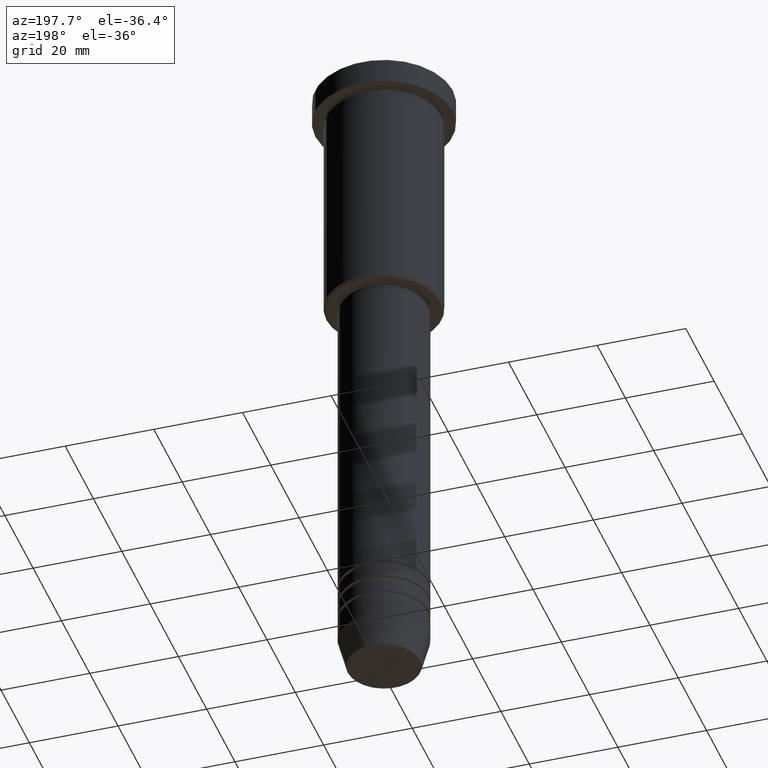
[diagram: clean part render]
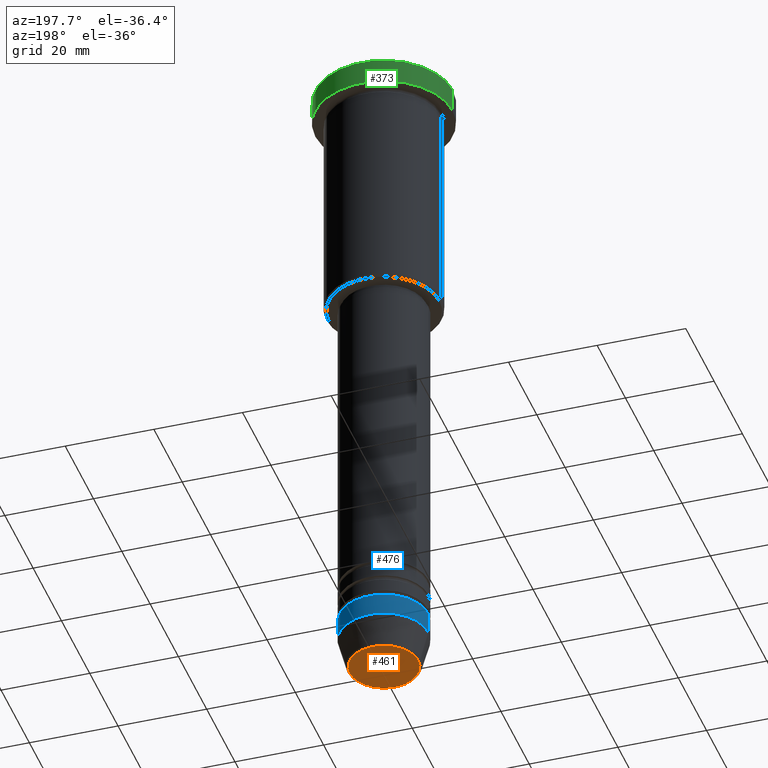
[diagram: same view with three faces highlighted in distinct colors, each labeled with its STEP entity id]
A machine part, auxiliary view with three faces highlighted in distinct colors.
Their STEP definitions:

[orange] entity #461 — the highlighted planar face has unit normal (0, -0, 1).
#24 = DIRECTION ( 'NONE',  ( 0.000000000000000000, -0.000000000000000000, 1.000000000000000000 ) ) ;
#44 = CARTESIAN_POINT ( 'NONE',  ( 0.000000000000000000, 0.000000000000000000, -151.0000000000000284 ) ) ;
#72 = CIRCLE ( 'NONE', #684, 7.740692158992660055 ) ;
#106 = CARTESIAN_POINT ( 'NONE',  ( 0.000000000000000000, 0.000000000000000000, -151.0000000000000284 ) ) ;
#230 = CARTESIAN_POINT ( 'NONE',  ( 7.740692158992660055, 0.000000000000000000, -151.0000000000000284 ) ) ;
#272 = EDGE_LOOP ( 'NONE', ( #290, #508 ) ) ;
#290 = ORIENTED_EDGE ( 'NONE', *, *, #417, .T. ) ;
#318 = DIRECTION ( 'NONE',  ( 0.000000000000000000, 0.000000000000000000, -1.000000000000000000 ) ) ;
#345 = DIRECTION ( 'NONE',  ( 0.000000000000000000, 0.000000000000000000, -1.000000000000000000 ) ) ;
#417 = EDGE_CURVE ( 'NONE', #691, #640, #1140, .T. ) ;
#461 = ADVANCED_FACE ( 'NONE', ( #878 ), #1088, .F. ) ;
#508 = ORIENTED_EDGE ( 'NONE', *, *, #1103, .T. ) ;
#629 = AXIS2_PLACEMENT_3D ( 'NONE', #44, #318, #692 ) ;
#640 = VERTEX_POINT ( 'NONE', #786 ) ;
#684 = AXIS2_PLACEMENT_3D ( 'NONE', #904, #345, #725 ) ;
#691 = VERTEX_POINT ( 'NONE', #230 ) ;
#692 = DIRECTION ( 'NONE',  ( 1.000000000000000000, 0.000000000000000000, 0.000000000000000000 ) ) ;
#722 = AXIS2_PLACEMENT_3D ( 'NONE', #106, #24, #1091 ) ;
#725 = DIRECTION ( 'NONE',  ( 1.000000000000000000, 0.000000000000000000, 0.000000000000000000 ) ) ;
#786 = CARTESIAN_POINT ( 'NONE',  ( -7.740692158992660055, 9.775343368540039135E-16, -151.0000000000000284 ) ) ;
#878 = FACE_OUTER_BOUND ( 'NONE', #272, .T. ) ;
#904 = CARTESIAN_POINT ( 'NONE',  ( 0.000000000000000000, 0.000000000000000000, -151.0000000000000284 ) ) ;
#1088 = PLANE ( 'NONE',  #722 ) ;
#1091 = DIRECTION ( 'NONE',  ( 1.000000000000000000, 0.000000000000000000, 0.000000000000000000 ) ) ;
#1103 = EDGE_CURVE ( 'NONE', #640, #691, #72, .T. ) ;
#1140 = CIRCLE ( 'NONE', #629, 7.740692158992660055 ) ;

[blue] entity #476 — the highlighted cylindrical surface (partial cylindrical patch) has radius 10 mm, axis along (-0, -0, 1).
#6 = FACE_OUTER_BOUND ( 'NONE', #727, .T. ) ;
#31 = VERTEX_POINT ( 'NONE', #364 ) ;
#33 = VECTOR ( 'NONE', #382, 1000.000000000000000 ) ;
#99 = ORIENTED_EDGE ( 'NONE', *, *, #1181, .F. ) ;
#134 = ORIENTED_EDGE ( 'NONE', *, *, #390, .F. ) ;
#249 = ORIENTED_EDGE ( 'NONE', *, *, #735, .T. ) ;
#261 = EDGE_CURVE ( 'NONE', #1014, #31, #1119, .T. ) ;
#265 = VECTOR ( 'NONE', #642, 1000.000000000000000 ) ;
#364 = CARTESIAN_POINT ( 'NONE',  ( -10.00000000000000000, 1.224646799147353256E-15, -139.0000000000000000 ) ) ;
#366 = DIRECTION ( 'NONE',  ( -0.000000000000000000, -0.000000000000000000, 1.000000000000000000 ) ) ;
#382 = DIRECTION ( 'NONE',  ( -0.000000000000000000, -0.000000000000000000, 1.000000000000000000 ) ) ;
#390 = EDGE_CURVE ( 'NONE', #881, #31, #1020, .T. ) ;
#445 = AXIS2_PLACEMENT_3D ( 'NONE', #840, #366, #749 ) ;
#454 = CARTESIAN_POINT ( 'NONE',  ( -10.00000000000000000, 1.224646799147353256E-15, 0.000000000000000000 ) ) ;
#463 = AXIS2_PLACEMENT_3D ( 'NONE', #958, #870, #1132 ) ;
#476 = ADVANCED_FACE ( 'NONE', ( #6 ), #559, .T. ) ;
#544 = AXIS2_PLACEMENT_3D ( 'NONE', #792, #1154, #1167 ) ;
#559 = CYLINDRICAL_SURFACE ( 'NONE', #445, 10.00000000000000000 ) ;
#562 = LINE ( 'NONE', #934, #265 ) ;
#611 = CIRCLE ( 'NONE', #544, 10.00000000000000000 ) ;
#626 = VERTEX_POINT ( 'NONE', #1145 ) ;
#637 = CARTESIAN_POINT ( 'NONE',  ( -10.00000000000000000, 1.224646799147353256E-15, -144.0000000000000284 ) ) ;
#642 = DIRECTION ( 'NONE',  ( -0.000000000000000000, -0.000000000000000000, 1.000000000000000000 ) ) ;
#727 = EDGE_LOOP ( 'NONE', ( #249, #763, #134, #99 ) ) ;
#735 = EDGE_CURVE ( 'NONE', #626, #1014, #611, .T. ) ;
#749 = DIRECTION ( 'NONE',  ( 1.000000000000000000, 0.000000000000000000, 0.000000000000000000 ) ) ;
#763 = ORIENTED_EDGE ( 'NONE', *, *, #261, .T. ) ;
#792 = CARTESIAN_POINT ( 'NONE',  ( 0.000000000000000000, 0.000000000000000000, -144.0000000000000284 ) ) ;
#840 = CARTESIAN_POINT ( 'NONE',  ( 0.000000000000000000, 0.000000000000000000, 0.000000000000000000 ) ) ;
#870 = DIRECTION ( 'NONE',  ( -0.000000000000000000, -0.000000000000000000, 1.000000000000000000 ) ) ;
#881 = VERTEX_POINT ( 'NONE', #959 ) ;
#934 = CARTESIAN_POINT ( 'NONE',  ( 10.00000000000000000, 0.000000000000000000, 0.000000000000000000 ) ) ;
#958 = CARTESIAN_POINT ( 'NONE',  ( 0.000000000000000000, 0.000000000000000000, -139.0000000000000000 ) ) ;
#959 = CARTESIAN_POINT ( 'NONE',  ( 10.00000000000000000, 0.000000000000000000, -139.0000000000000000 ) ) ;
#1014 = VERTEX_POINT ( 'NONE', #637 ) ;
#1020 = CIRCLE ( 'NONE', #463, 10.00000000000000000 ) ;
#1119 = LINE ( 'NONE', #454, #33 ) ;
#1132 = DIRECTION ( 'NONE',  ( 1.000000000000000000, 0.000000000000000000, 0.000000000000000000 ) ) ;
#1145 = CARTESIAN_POINT ( 'NONE',  ( 10.00000000000000000, 0.000000000000000000, -144.0000000000000284 ) ) ;
#1154 = DIRECTION ( 'NONE',  ( -0.000000000000000000, -0.000000000000000000, 1.000000000000000000 ) ) ;
#1167 = DIRECTION ( 'NONE',  ( 1.000000000000000000, 0.000000000000000000, 0.000000000000000000 ) ) ;
#1181 = EDGE_CURVE ( 'NONE', #626, #881, #562, .T. ) ;

[green] entity #373 — the highlighted cylindrical surface (partial cylindrical patch) has radius 15.5 mm, axis along (-0, -0, 1).
#197 = CARTESIAN_POINT ( 'NONE',  ( 0.000000000000000000, 0.000000000000000000, -5.999999999999995559 ) ) ;
#214 = DIRECTION ( 'NONE',  ( 1.000000000000000000, 0.000000000000000000, 0.000000000000000000 ) ) ;
#216 = DIRECTION ( 'NONE',  ( 1.000000000000000000, 0.000000000000000000, 0.000000000000000000 ) ) ;
#266 = AXIS2_PLACEMENT_3D ( 'NONE', #1147, #1047, #1052 ) ;
#310 = FACE_OUTER_BOUND ( 'NONE', #420, .T. ) ;
#313 = CARTESIAN_POINT ( 'NONE',  ( -15.50000000000000000, 1.898202538678397557E-15, 0.000000000000000000 ) ) ;
#373 = ADVANCED_FACE ( 'NONE', ( #310 ), #478, .T. ) ;
#381 = CARTESIAN_POINT ( 'NONE',  ( 15.50000000000000000, 0.000000000000000000, 0.000000000000000000 ) ) ;
#420 = EDGE_LOOP ( 'NONE', ( #943, #451, #874, #997 ) ) ;
#427 = EDGE_CURVE ( 'NONE', #1126, #711, #1120, .T. ) ;
#443 = CARTESIAN_POINT ( 'NONE',  ( -15.50000000000000000, 1.898202538678397557E-15, -0.5000000000000264233 ) ) ;
#448 = LINE ( 'NONE', #381, #543 ) ;
#451 = ORIENTED_EDGE ( 'NONE', *, *, #728, .T. ) ;
#478 = CYLINDRICAL_SURFACE ( 'NONE', #507, 15.50000000000000000 ) ;
#493 = EDGE_CURVE ( 'NONE', #1162, #711, #448, .T. ) ;
#503 = DIRECTION ( 'NONE',  ( -0.000000000000000000, -0.000000000000000000, 1.000000000000000000 ) ) ;
#507 = AXIS2_PLACEMENT_3D ( 'NONE', #944, #1035, #216 ) ;
#543 = VECTOR ( 'NONE', #826, 1000.000000000000000 ) ;
#571 = CARTESIAN_POINT ( 'NONE',  ( 15.50000000000000000, 0.000000000000000000, -5.999999999999995559 ) ) ;
#588 = EDGE_CURVE ( 'NONE', #1162, #1180, #1064, .T. ) ;
#659 = CARTESIAN_POINT ( 'NONE',  ( -15.50000000000000000, 1.898202538678397557E-15, -5.999999999999995559 ) ) ;
#687 = DIRECTION ( 'NONE',  ( -0.000000000000000000, -0.000000000000000000, 1.000000000000000000 ) ) ;
#711 = VERTEX_POINT ( 'NONE', #1136 ) ;
#728 = EDGE_CURVE ( 'NONE', #1180, #1126, #949, .T. ) ;
#826 = DIRECTION ( 'NONE',  ( -0.000000000000000000, -0.000000000000000000, 1.000000000000000000 ) ) ;
#874 = ORIENTED_EDGE ( 'NONE', *, *, #427, .T. ) ;
#943 = ORIENTED_EDGE ( 'NONE', *, *, #588, .T. ) ;
#944 = CARTESIAN_POINT ( 'NONE',  ( 0.000000000000000000, 0.000000000000000000, 0.000000000000000000 ) ) ;
#949 = LINE ( 'NONE', #313, #964 ) ;
#964 = VECTOR ( 'NONE', #687, 1000.000000000000000 ) ;
#997 = ORIENTED_EDGE ( 'NONE', *, *, #493, .F. ) ;
#1035 = DIRECTION ( 'NONE',  ( -0.000000000000000000, -0.000000000000000000, 1.000000000000000000 ) ) ;
#1047 = DIRECTION ( 'NONE',  ( 0.000000000000000000, 0.000000000000000000, -1.000000000000000000 ) ) ;
#1052 = DIRECTION ( 'NONE',  ( 1.000000000000000000, 0.000000000000000000, 0.000000000000000000 ) ) ;
#1064 = CIRCLE ( 'NONE', #1142, 15.50000000000000000 ) ;
#1120 = CIRCLE ( 'NONE', #266, 15.50000000000000000 ) ;
#1126 = VERTEX_POINT ( 'NONE', #443 ) ;
#1136 = CARTESIAN_POINT ( 'NONE',  ( 15.50000000000000000, 0.000000000000000000, -0.5000000000000264233 ) ) ;
#1142 = AXIS2_PLACEMENT_3D ( 'NONE', #197, #503, #214 ) ;
#1147 = CARTESIAN_POINT ( 'NONE',  ( 0.000000000000000000, 0.000000000000000000, -0.5000000000000264233 ) ) ;
#1162 = VERTEX_POINT ( 'NONE', #571 ) ;
#1180 = VERTEX_POINT ( 'NONE', #659 ) ;